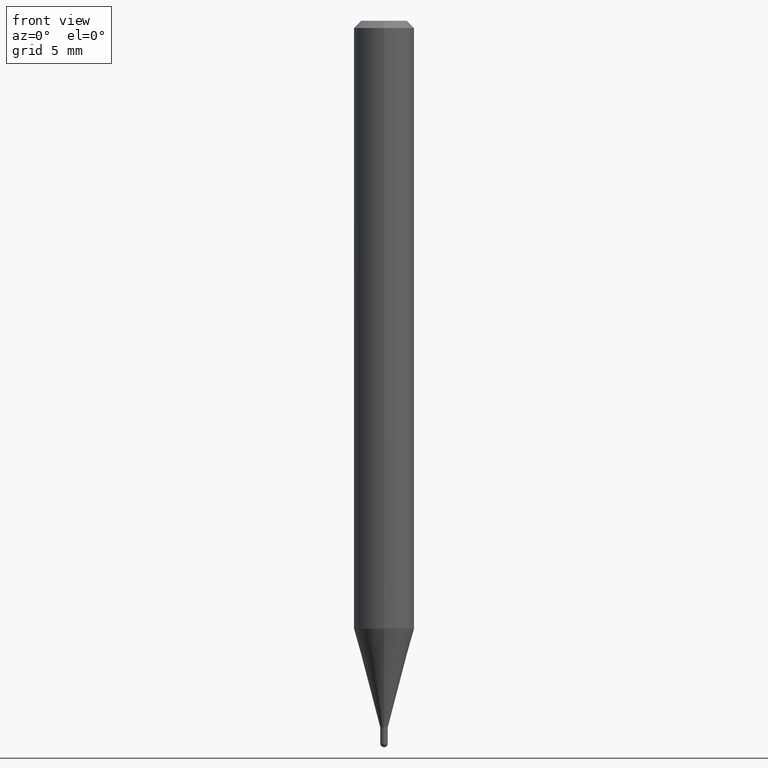
[diagram: clean part render]
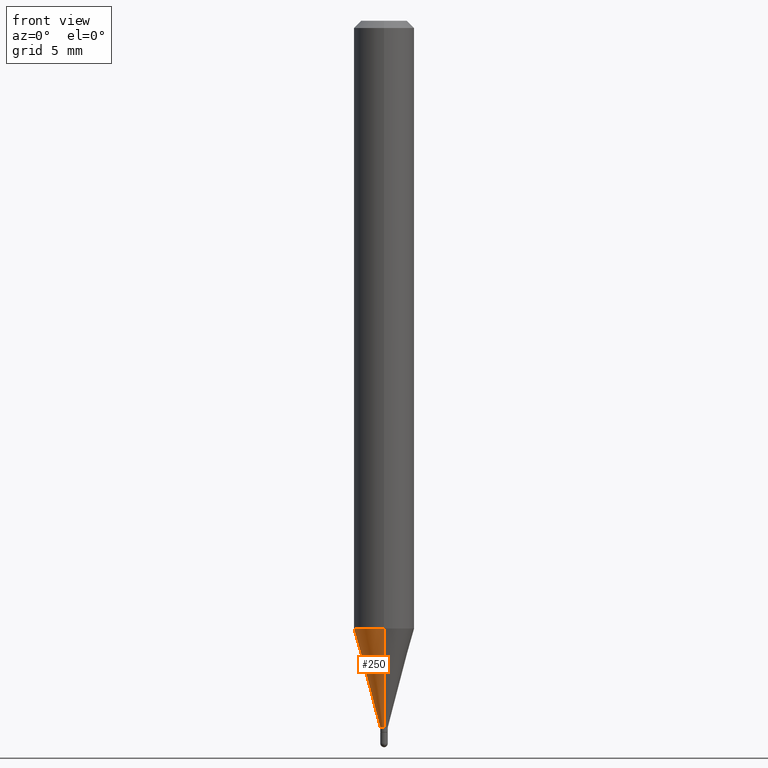
[diagram: same view with one face highlighted and labeled with its STEP entity id]
A machine part, front view. The second image highlights one B-rep face of the part: STEP entity #250.
In plain terms, the highlighted conical surface has half-angle 15 deg.
Its self-contained STEP definition (entity closure, byte-faithful):
#38 = AXIS2_PLACEMENT_3D ( 'NONE', #76, #338, #355 ) ;
#59 = CARTESIAN_POINT ( 'NONE',  ( 3.060455742325940316E-29, -4.393134338761063639E-15, -1.254856820825981156 ) ) ;
#76 = CARTESIAN_POINT ( 'NONE',  ( 3.558338173684570517E-29, -5.107820186237207836E-15, -1.459000000000000519 ) ) ;
#92 = EDGE_CURVE ( 'NONE', #509, #178, #137, .T. ) ;
#96 = CARTESIAN_POINT ( 'NONE',  ( -5.446710888591297207E-17, -0.007800000000004489974, -1.459000000000000519 ) ) ;
#118 = FACE_OUTER_BOUND ( 'NONE', #388, .T. ) ;
#137 = LINE ( 'NONE', #96, #465 ) ;
#144 = AXIS2_PLACEMENT_3D ( 'NONE', #283, #445, #249 ) ;
#151 = DIRECTION ( 'NONE',  ( -6.982962677686265922E-15, -1.000000000000000000, 4.370956789862819572E-15 ) ) ;
#154 = EDGE_CURVE ( 'NONE', #439, #202, #410, .T. ) ;
#178 = VERTEX_POINT ( 'NONE', #230 ) ;
#202 = VERTEX_POINT ( 'NONE', #391 ) ;
#216 = DIRECTION ( 'NONE',  ( 1.839019923739600315E-15, 0.2588190451025249583, 0.9659258262890670910 ) ) ;
#225 = CARTESIAN_POINT ( 'NONE',  ( -5.446710888591297207E-17, -0.007800000000004489974, -1.459000000000000519 ) ) ;
#230 = CARTESIAN_POINT ( 'NONE',  ( -4.364351673553611504E-16, -0.06250000000000441314, -1.254856820825980934 ) ) ;
#241 = ORIENTED_EDGE ( 'NONE', *, *, #506, .F. ) ;
#249 = DIRECTION ( 'NONE',  ( -6.982962677686266711E-15, -1.000000000000000000, 0.000000000000000000 ) ) ;
#250 = ADVANCED_FACE ( 'NONE', ( #118 ), #269, .T. ) ;
#259 = AXIS2_PLACEMENT_3D ( 'NONE', #59, #418, #151 ) ;
#265 = DIRECTION ( 'NONE',  ( -1.807323732225330139E-15, -0.2588190451025181860, 0.9659258262890689783 ) ) ;
#269 = CONICAL_SURFACE ( 'NONE', #38, 0.007799999999999381213, 0.2617993877991502960 ) ;
#283 = CARTESIAN_POINT ( 'NONE',  ( 3.558338173684570517E-29, -5.107820186237207836E-15, -1.459000000000000519 ) ) ;
#323 = ORIENTED_EDGE ( 'NONE', *, *, #154, .F. ) ;
#338 = DIRECTION ( 'NONE',  ( -2.438888398687161749E-29, 3.500904856913780958E-15, 1.000000000000000000 ) ) ;
#342 = ORIENTED_EDGE ( 'NONE', *, *, #92, .T. ) ;
#355 = DIRECTION ( 'NONE',  ( -6.982962677686266711E-15, -1.000000000000000000, 0.000000000000000000 ) ) ;
#363 = CIRCLE ( 'NONE', #259, 0.06250000000000002776 ) ;
#371 = VECTOR ( 'NONE', #216, 39.37007874015748143 ) ;
#388 = EDGE_LOOP ( 'NONE', ( #323, #450, #342, #241 ) ) ;
#391 = CARTESIAN_POINT ( 'NONE',  ( 4.440892098500931845E-16, 0.06249999999999561462, -1.254856820825981378 ) ) ;
#410 = LINE ( 'NONE', #447, #371 ) ;
#418 = DIRECTION ( 'NONE',  ( -2.438888398687161749E-29, 3.500904856913780958E-15, 1.000000000000000000 ) ) ;
#439 = VERTEX_POINT ( 'NONE', #478 ) ;
#445 = DIRECTION ( 'NONE',  ( -2.438888398687161749E-29, 3.500904856913780958E-15, 1.000000000000000000 ) ) ;
#447 = CARTESIAN_POINT ( 'NONE',  ( 5.542233338931899661E-17, 0.007799999999994273320, -1.459000000000000519 ) ) ;
#450 = ORIENTED_EDGE ( 'NONE', *, *, #491, .T. ) ;
#465 = VECTOR ( 'NONE', #265, 39.37007874015748143 ) ;
#478 = CARTESIAN_POINT ( 'NONE',  ( 2.497557716197062816E-16, 0.007799999999994272452, -1.459000000000000519 ) ) ;
#491 = EDGE_CURVE ( 'NONE', #439, #509, #511, .T. ) ;
#506 = EDGE_CURVE ( 'NONE', #202, #178, #363, .T. ) ;
#509 = VERTEX_POINT ( 'NONE', #225 ) ;
#511 = CIRCLE ( 'NONE', #144, 0.007799999999999381213 ) ;